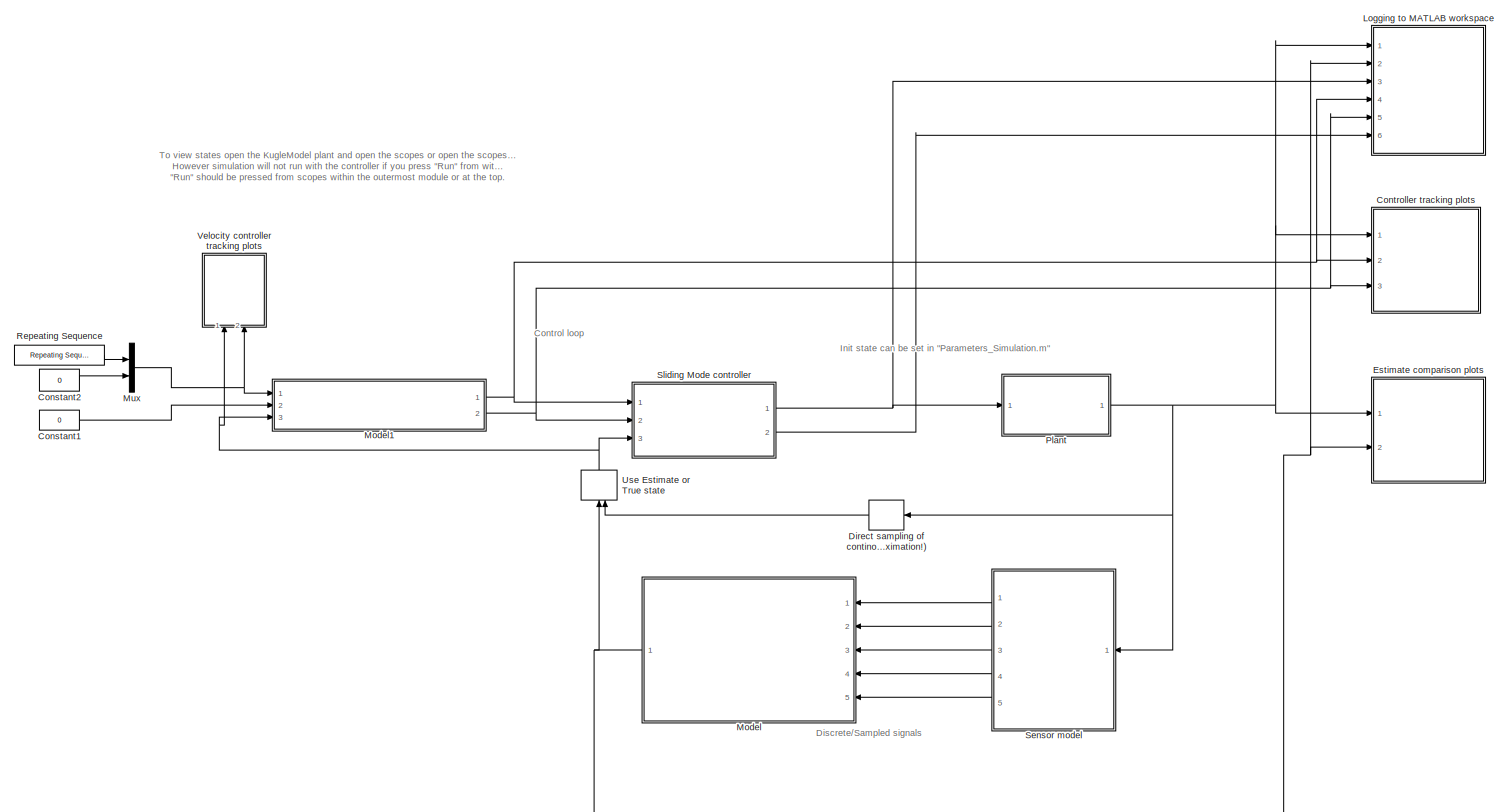
[diagram: root canvas - part 1/1, most of the canvas]
MODEL slx_c3796ff58ca4
KIND model
CONFIG AbsTol = auto
CONFIG EnableMultiTasking = off
CONFIG FixedStep = 1e-3
CONFIG InitFcn = Parameters_General\nParameters_Simulation\nParameters_Controllers
CONFIG MaxStep = 1e-2
CONFIG MinStep = auto
CONFIG PreLoadFcn = modelDir = fileparts(get_param(bdroot, 'FileName'));\naddpath(fullfile(modelDir,'../Parameters'));\naddpath(fullfile(modelDir,'subsystems'));\n\nParameters_General\nParameters_Simulation\nParameters_Controllers
CONFIG RelTol = 1e-5
CONFIG SampleTimeConstraint = Unconstrained
CONFIG Solver = VariableStepAuto
CONFIG SolverName = VariableStepAuto
CONFIG StartTime = 0.0
CONFIG StopFcn = StructurizeLoggedData
CONFIG StopTime = 35
BLOCK [Constant] Constant1
  SampleTime = Ts
  Value = 0
BLOCK [Constant] Constant2
  SampleTime = Ts
  Value = 0
BLOCK [ModelReference] Controller tracking plots
  ModelNameDialog = TrackingComparison
  ModelReferenceVersion = 1.13
  Ports = [3]
BLOCK [ZeroOrderHold] Direct sampling of continous states (simple//approximation!)
  SampleTime = Ts
BLOCK [ModelReference] Estimate comparison plots
  ModelNameDialog = StatesComparison
  ModelReferenceVersion = 1.9
  Ports = [2]
BLOCK [ModelReference] Logging to MATLAB workspace
  ModelNameDialog = Logging
  ModelReferenceVersion = 1.12
  Ports = [6]
BLOCK [ModelReference] Model
  ModelNameDialog = Estimators
  ModelReferenceVersion = 1.12
  Ports = [5, 1]
BLOCK [ModelReference] Model1
  ModelNameDialog = Velocity_LQR
  ModelReferenceVersion = 1.67
  Ports = [3, 2]
BLOCK [Mux] Mux
  DisplayOption = bar
  Inputs = 2
  Ports = [2, 1]
BLOCK [ModelReference] Plant
  ModelNameDialog = KugleModel
  ModelReferenceVersion = 1.2094
  Ports = [1, 1]
BLOCK [Reference] Repeating Sequence  REF=simulink/Sources/Repeating
Sequence
  Ports = [0, 1]
  SourceBlock = simulink/Sources/Repeating\nSequence
  SourceProductBaseCode = SL
  SourceProductName = Simulink
  SourceType = Repeating table
BLOCK [ModelReference] Sensor model
  ModelNameDialog = SensorModels
  ModelReferenceVersion = 1.18
  Ports = [1, 5]
BLOCK [ModelReference] Sliding Mode controller
  ModelNameDialog = SlidingMode
  ModelReferenceVersion = 1.48
  Ports = [3, 2]
BLOCK [ManualSwitch] Use Estimate or True state
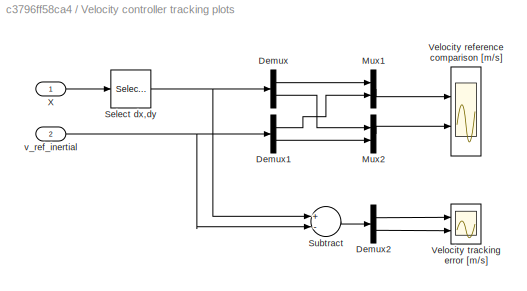
BLOCK [SubSystem] Velocity controller tracking plots
  Ports = [2]
  RequestExecContextInheritance = off
BLOCK [Demux] Velocity controller tracking plots/Demux
  DisplayOption = bar
  Outputs = 2
  Ports = [1, 2]
BLOCK [Demux] Velocity controller tracking plots/Demux1
  DisplayOption = bar
  Outputs = 2
  Ports = [1, 2]
BLOCK [Demux] Velocity controller tracking plots/Demux2
  DisplayOption = bar
  Outputs = 2
  Ports = [1, 2]
BLOCK [Mux] Velocity controller tracking plots/Mux1
  DisplayOption = bar
  Inputs = 2
  Ports = [2, 1]
BLOCK [Mux] Velocity controller tracking plots/Mux2
  DisplayOption = bar
  Inputs = 2
  Ports = [2, 1]
BLOCK [Selector] Velocity controller tracking plots/Select dx,dy
  IndexOptions = Index vector (dialog)
  Indices = [7,8]
  InputPortWidth = 12
  OutputSizes = 1
  Ports = [1, 1]
BLOCK [Sum] Velocity controller tracking plots/Subtract
  InputSameDT = off
  Inputs = +-
  OutDataTypeStr = Inherit: Inherit via internal rule
  Ports = [2, 1]
  SaturateOnIntegerOverflow = off
BLOCK [Scope] Velocity controller tracking plots/Velocity reference comparison [m//s]
  Floating = off
  NumInputPorts = 2
  Ports = [2]
  ScopeSpecificationString = Simulink.scopes.TimeScopeBlockCfg('CurrentConfiguration', extmgr.ConfigurationSet(extmgr.Configuration('Core','General UI',true),extmgr.Configuration('Core','Source UI',true),extmgr.Configuration('Sources','WiredSimulink',true),extmgr.Configuration('Visuals','Time Domain',true,'SerializedDisplays',{struct('MinYLimReal','-1.33178','MaxYLimReal','1.33183','YLabelReal','','MinYLimMag','0.00000','MaxY...<+2151ch>
BLOCK [Scope] Velocity controller tracking plots/Velocity tracking error [m//s]
  Floating = off
  NumInputPorts = 2
  Ports = [2]
  ScopeSpecificationString = Simulink.scopes.TimeScopeBlockCfg('CurrentConfiguration', extmgr.ConfigurationSet(extmgr.Configuration('Core','General UI',true),extmgr.Configuration('Core','Source UI',true),extmgr.Configuration('Sources','WiredSimulink',true,'DataLoggingVariableName','ScopeData1'),extmgr.Configuration('Visuals','Time Domain',true,'SerializedDisplays',{struct('MinYLimReal','-0.40176','MaxYLimReal','0.40178','YLab...<+2169ch>
BLOCK [Inport] Velocity controller tracking plots/X
  IconDisplay = Port number
BLOCK [Inport] Velocity controller tracking plots/v_ref_inertial
  IconDisplay = Port number
  Port = 2
ANNOTATION (root): Control loop
ANNOTATION (root): Discrete/Sampled signals
ANNOTATION (root): Init state can be set in "Parameters_Simulation.m"
ANNOTATION (root): To view states open the KugleModel plant and open the scopes or open the scopes inside the plot modules on the right. However simulation will not run with the controller if you press "Run" from within the scopes inside any of the modules. "Run" should be pressed from scopes within the outermost module or at the top.
LINE Constant1:1 -> Model1:2
LINE Constant2:1 -> Mux:2
LINE Direct sampling of continous states (simple//approximation!):1 -> Use Estimate or True state:2
NET Model1:1 -> Controller tracking plots:2, Logging to MATLAB workspace:4, Sliding Mode controller:1
NET Model1:2 -> Controller tracking plots:3, Logging to MATLAB workspace:5, Sliding Mode controller:2
NET Model:1 -> Estimate comparison plots:2, Logging to MATLAB workspace:2, Use Estimate or True state:1
NET Mux:1 -> Model1:1, Velocity controller tracking plots:2
NET Plant:1 -> Controller tracking plots:1, Direct sampling of continous states (simple//approximation!):1, Estimate comparison plots:1, Logging to MATLAB workspace:1, Sensor model:1
LINE Repeating Sequence:1 -> Mux:1
LINE Sensor model:1 -> Model:1
LINE Sensor model:2 -> Model:2
LINE Sensor model:3 -> Model:3
LINE Sensor model:4 -> Model:4
LINE Sensor model:5 -> Model:5
NET Sliding Mode controller:1 -> Logging to MATLAB workspace:3, Plant:1
LINE Sliding Mode controller:2 -> Logging to MATLAB workspace:6
NET Use Estimate or True state:1 -> Model1:3, Sliding Mode controller:3, Velocity controller tracking plots:1
LINE Velocity controller tracking plots/Demux1:1 -> Velocity controller tracking plots/Mux1:2
LINE Velocity controller tracking plots/Demux1:2 -> Velocity controller tracking plots/Mux2:2
LINE Velocity controller tracking plots/Demux2:1 -> Velocity controller tracking plots/Velocity tracking error [m//s]:1
LINE Velocity controller tracking plots/Demux2:2 -> Velocity controller tracking plots/Velocity tracking error [m//s]:2
LINE Velocity controller tracking plots/Demux:1 -> Velocity controller tracking plots/Mux1:1
LINE Velocity controller tracking plots/Demux:2 -> Velocity controller tracking plots/Mux2:1
LINE Velocity controller tracking plots/Mux1:1 -> Velocity controller tracking plots/Velocity reference comparison [m//s]:1
LINE Velocity controller tracking plots/Mux2:1 -> Velocity controller tracking plots/Velocity reference comparison [m//s]:2
NET Velocity controller tracking plots/Select dx,dy:1 -> Velocity controller tracking plots/Demux:1, Velocity controller tracking plots/Subtract:1
LINE Velocity controller tracking plots/Subtract:1 -> Velocity controller tracking plots/Demux2:1
LINE Velocity controller tracking plots/X:1 -> Velocity controller tracking plots/Select dx,dy:1
NET Velocity controller tracking plots/v_ref_inertial:1 -> Velocity controller tracking plots/Demux1:1, Velocity controller tracking plots/Subtract:2
note: NET lines group one-source signal fan-out (src -> all destinations, sorted); 1:1 wires keep LINE
